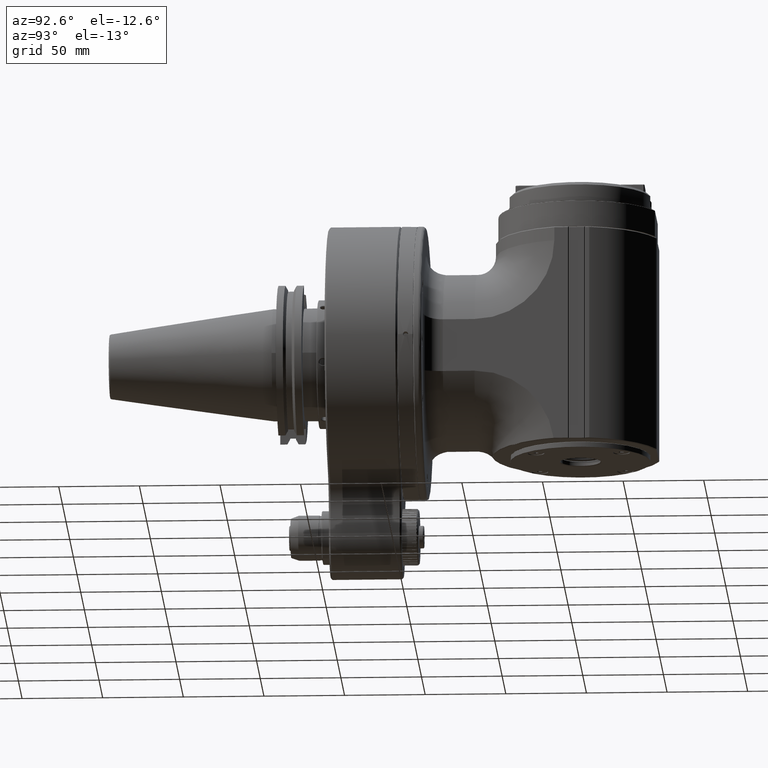
[diagram: clean part render]
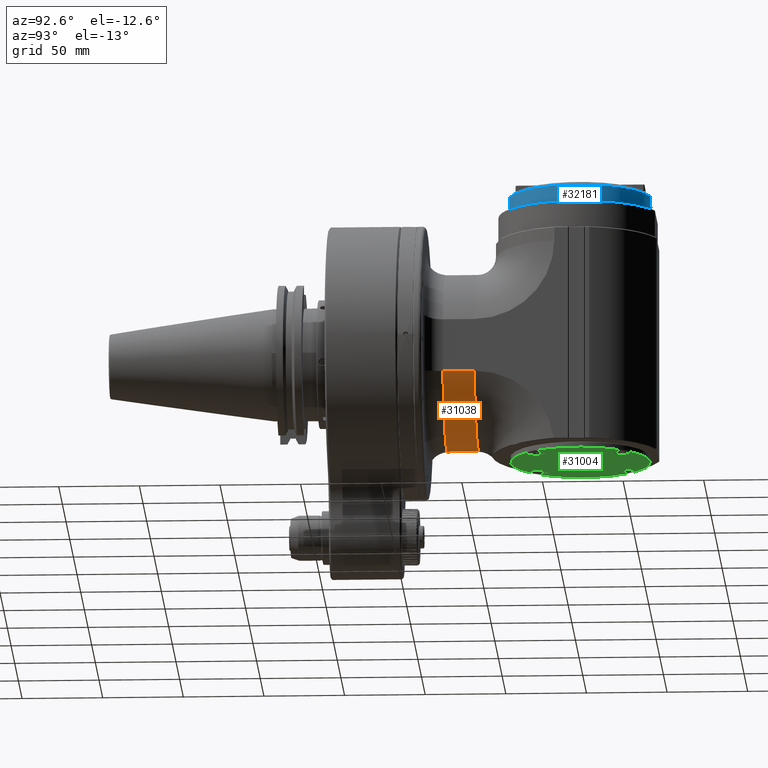
[diagram: same view with three faces highlighted in distinct colors, each labeled with its STEP entity id]
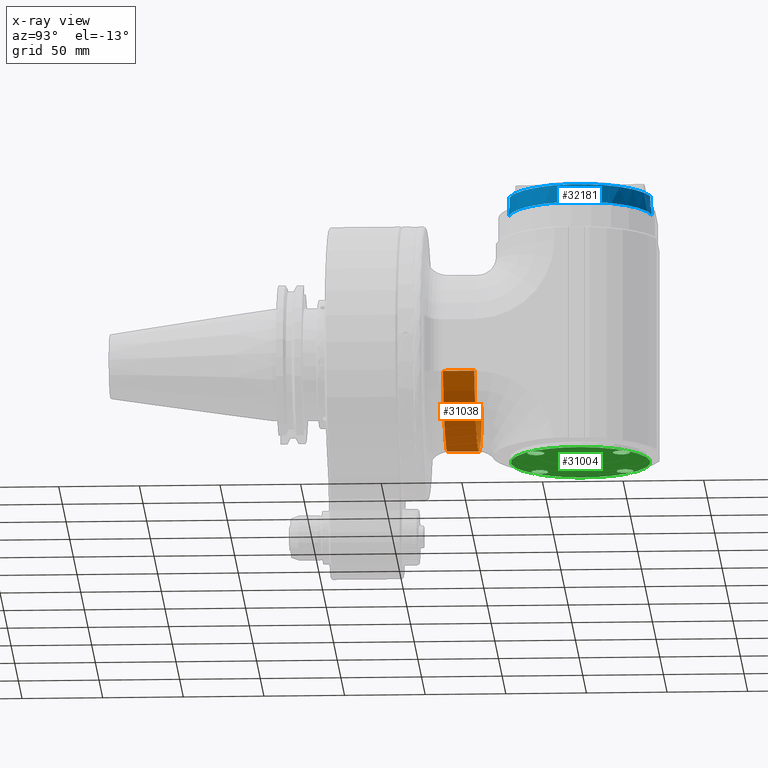
[diagram: x-ray of the same camera — body ghosted, the three highlighted faces saturated]
A machine part, auxiliary view with three faces highlighted in distinct colors.
The next image is the same camera in x-ray (body ghosted, the three faces saturated) — at least one of them is partly hidden behind the body in this view.
Their STEP definitions:

[orange] entity #31038 — the highlighted cylindrical surface (partial cylindrical patch) has radius 55 mm, axis along (0, 1, 0).
#1342=LINE('',#49433,#4148);
#1578=LINE('',#49927,#4384);
#4148=VECTOR('',#37153,19.5);
#4384=VECTOR('',#37433,19.5);
#6754=CYLINDRICAL_SURFACE('',#33212,55.);
#7626=FACE_OUTER_BOUND('',#9568,.T.);
#9568=EDGE_LOOP('',(#21930,#21931,#21932,#21933));
#11604=CIRCLE('',#33187,55.);
#11612=CIRCLE('',#33213,54.99999999997);
#13081=VERTEX_POINT('',#49425);
#13082=VERTEX_POINT('',#49427);
#13083=VERTEX_POINT('',#49432);
#13313=VERTEX_POINT('',#49925);
#16368=EDGE_CURVE('',#13082,#13081,#11604,.T.);
#16371=EDGE_CURVE('',#13083,#13082,#1342,.T.);
#16616=EDGE_CURVE('',#13313,#13081,#1578,.T.);
#16617=EDGE_CURVE('',#13313,#13083,#11612,.T.);
#21930=ORIENTED_EDGE('',*,*,#16368,.T.);
#21931=ORIENTED_EDGE('',*,*,#16616,.F.);
#21932=ORIENTED_EDGE('',*,*,#16617,.T.);
#21933=ORIENTED_EDGE('',*,*,#16371,.T.);
#31038=ADVANCED_FACE('',(#7626),#6754,.T.);
#33187=AXIS2_PLACEMENT_3D('',#49428,#37146,#37147);
#33212=AXIS2_PLACEMENT_3D('',#49928,#37434,#37435);
#33213=AXIS2_PLACEMENT_3D('',#49929,#37436,#37437);
#37146=DIRECTION('center_axis',(0.,-1.,0.));
#37147=DIRECTION('ref_axis',(-0.954545454545451,0.,-0.298065387468285));
#37153=DIRECTION('',(-2.663624306875E-13,1.,-5.021168666038E-13));
#37433=DIRECTION('',(2.470502435104E-13,1.,-6.270995119195E-13));
#37434=DIRECTION('center_axis',(0.,1.,0.));
#37435=DIRECTION('ref_axis',(1.,0.,0.));
#37436=DIRECTION('center_axis',(0.,1.,0.));
#37437=DIRECTION('ref_axis',(0.954545454545573,0.,-0.298065387467892));
#49425=CARTESIAN_POINT('',(52.5,46.5,-16.39359631076));
#49427=CARTESIAN_POINT('',(-52.5,46.5,-16.39359631076));
#49428=CARTESIAN_POINT('Origin',(0.,46.5,0.));
#49432=CARTESIAN_POINT('',(-52.49999999999,27.,-16.39359631075));
#49433=CARTESIAN_POINT('',(-52.49999999999,27.,-16.39359631075));
#49925=CARTESIAN_POINT('',(52.5,27.,-16.39359631074));
#49927=CARTESIAN_POINT('',(52.5,27.,-16.39359631074));
#49928=CARTESIAN_POINT('Origin',(0.,-40.15,0.));
#49929=CARTESIAN_POINT('Origin',(0.,27.,0.));

[blue] entity #32181 — the highlighted cylindrical surface (partial cylindrical patch) has radius 44.5 mm, axis along (0, 0, -1).
#3364=LINE('',#59233,#6170);
#3366=LINE('',#59249,#6172);
#3367=LINE('',#59254,#6173);
#3368=LINE('',#59258,#6174);
#6170=VECTOR('',#42813,4.5);
#6172=VECTOR('',#42819,4.5);
#6173=VECTOR('',#42824,6.5);
#6174=VECTOR('',#42827,6.5);
#6938=CYLINDRICAL_SURFACE('',#35010,44.5);
#8769=FACE_OUTER_BOUND('',#10832,.T.);
#10832=EDGE_LOOP('',(#27586,#27587,#27588,#27589,#27590,#27591,#27592,#27593));
#12272=CIRCLE('',#35011,44.5);
#12273=CIRCLE('',#35012,44.5);
#12274=CIRCLE('',#35013,44.5);
#12275=CIRCLE('',#35014,44.5);
#14987=VERTEX_POINT('',#59231);
#14988=VERTEX_POINT('',#59232);
#14991=VERTEX_POINT('',#59247);
#14992=VERTEX_POINT('',#59248);
#14993=VERTEX_POINT('',#59251);
#14994=VERTEX_POINT('',#59253);
#14995=VERTEX_POINT('',#59255);
#14996=VERTEX_POINT('',#59257);
#19291=EDGE_CURVE('',#14987,#14988,#3364,.T.);
#19296=EDGE_CURVE('',#14991,#14992,#3366,.T.);
#19297=EDGE_CURVE('',#14988,#14992,#12272,.T.);
#19298=EDGE_CURVE('',#14987,#14993,#12273,.T.);
#19299=EDGE_CURVE('',#14994,#14993,#3367,.T.);
#19300=EDGE_CURVE('',#14994,#14995,#12274,.T.);
#19301=EDGE_CURVE('',#14995,#14996,#3368,.T.);
#19302=EDGE_CURVE('',#14996,#14991,#12275,.T.);
#27586=ORIENTED_EDGE('',*,*,#19296,.T.);
#27587=ORIENTED_EDGE('',*,*,#19297,.F.);
#27588=ORIENTED_EDGE('',*,*,#19291,.F.);
#27589=ORIENTED_EDGE('',*,*,#19298,.T.);
#27590=ORIENTED_EDGE('',*,*,#19299,.F.);
#27591=ORIENTED_EDGE('',*,*,#19300,.T.);
#27592=ORIENTED_EDGE('',*,*,#19301,.T.);
#27593=ORIENTED_EDGE('',*,*,#19302,.T.);
#32181=ADVANCED_FACE('',(#8769),#6938,.T.);
#35010=AXIS2_PLACEMENT_3D('',#59246,#42817,#42818);
#35011=AXIS2_PLACEMENT_3D('',#59250,#42820,#42821);
#35012=AXIS2_PLACEMENT_3D('',#59252,#42822,#42823);
#35013=AXIS2_PLACEMENT_3D('',#59256,#42825,#42826);
#35014=AXIS2_PLACEMENT_3D('',#59259,#42828,#42829);
#42813=DIRECTION('',(0.,0.,-1.));
#42817=DIRECTION('center_axis',(0.,0.,-1.));
#42818=DIRECTION('ref_axis',(0.,-1.,0.));
#42819=DIRECTION('',(0.,0.,-1.));
#42820=DIRECTION('center_axis',(0.,0.,-1.));
#42821=DIRECTION('ref_axis',(0.0973896769489501,0.995246326707001,0.));
#42822=DIRECTION('center_axis',(0.,0.,-1.));
#42823=DIRECTION('ref_axis',(0.0973896769489501,0.995246326707001,0.));
#42824=DIRECTION('',(0.,0.,-1.));
#42825=DIRECTION('center_axis',(0.,0.,-1.));
#42826=DIRECTION('ref_axis',(0.201784940526397,0.979429853423285,0.));
#42827=DIRECTION('',(0.,0.,-1.));
#42828=DIRECTION('center_axis',(0.,0.,-1.));
#42829=DIRECTION('ref_axis',(0.201784940526397,-0.979429853423285,0.));
#59231=CARTESIAN_POINT('',(4.333840624228,154.2884615385,96.5));
#59232=CARTESIAN_POINT('',(4.333840624228,154.2884615385,92.));
#59233=CARTESIAN_POINT('',(4.333840624228,154.2884615385,96.5));
#59246=CARTESIAN_POINT('Origin',(0.,110.,113.225));
#59247=CARTESIAN_POINT('',(4.333840624228,65.71153846154,96.5));
#59248=CARTESIAN_POINT('',(4.333840624228,65.71153846154,92.));
#59249=CARTESIAN_POINT('',(4.333840624228,65.71153846154,96.5));
#59250=CARTESIAN_POINT('Origin',(0.,110.,92.));
#59251=CARTESIAN_POINT('',(8.979429853423,153.5846284773,96.5));
#59252=CARTESIAN_POINT('Origin',(0.,110.,96.5));
#59253=CARTESIAN_POINT('',(8.979429853423,153.5846284773,103.));
#59254=CARTESIAN_POINT('',(8.979429853423,153.5846284773,103.));
#59255=CARTESIAN_POINT('',(8.979429853423,66.41537152266,103.));
#59256=CARTESIAN_POINT('Origin',(0.,110.,103.));
#59257=CARTESIAN_POINT('',(8.979429853423,66.41537152266,96.5));
#59258=CARTESIAN_POINT('',(8.979429853423,66.41537152266,103.));
#59259=CARTESIAN_POINT('Origin',(0.,110.,96.5));

[green] entity #31004 — the highlighted planar face has unit normal (0, 0, -1).
#7139=FACE_BOUND('',#9512,.T.);
#7140=FACE_BOUND('',#9513,.T.);
#7141=FACE_BOUND('',#9514,.T.);
#7142=FACE_BOUND('',#9515,.T.);
#7143=FACE_BOUND('',#9516,.T.);
#7592=FACE_OUTER_BOUND('',#9511,.T.);
#9511=EDGE_LOOP('',(#21526));
#9512=EDGE_LOOP('',(#21527));
#9513=EDGE_LOOP('',(#21528));
#9514=EDGE_LOOP('',(#21529));
#9515=EDGE_LOOP('',(#21530));
#9516=EDGE_LOOP('',(#21531));
#11579=CIRCLE('',#33141,13.);
#11580=CIRCLE('',#33143,43.3);
#11581=CIRCLE('',#33144,5.25);
#11582=CIRCLE('',#33145,5.25);
#11583=CIRCLE('',#33146,5.25);
#11584=CIRCLE('',#33147,5.25);
#13022=VERTEX_POINT('',#48772);
#13023=VERTEX_POINT('',#48776);
#13024=VERTEX_POINT('',#48778);
#13025=VERTEX_POINT('',#48780);
#13026=VERTEX_POINT('',#48782);
#13027=VERTEX_POINT('',#48784);
#16292=EDGE_CURVE('',#13022,#13022,#11579,.T.);
#16293=EDGE_CURVE('',#13023,#13023,#11580,.T.);
#16294=EDGE_CURVE('',#13024,#13024,#11581,.T.);
#16295=EDGE_CURVE('',#13025,#13025,#11582,.T.);
#16296=EDGE_CURVE('',#13026,#13026,#11583,.T.);
#16297=EDGE_CURVE('',#13027,#13027,#11584,.T.);
#21526=ORIENTED_EDGE('',*,*,#16293,.F.);
#21527=ORIENTED_EDGE('',*,*,#16294,.F.);
#21528=ORIENTED_EDGE('',*,*,#16295,.F.);
#21529=ORIENTED_EDGE('',*,*,#16296,.F.);
#21530=ORIENTED_EDGE('',*,*,#16297,.F.);
#21531=ORIENTED_EDGE('',*,*,#16292,.T.);
#29845=PLANE('',#33142);
#31004=ADVANCED_FACE('',(#7592,#7139,#7140,#7141,#7142,#7143),#29845,.T.);
#33141=AXIS2_PLACEMENT_3D('',#48774,#37018,#37019);
#33142=AXIS2_PLACEMENT_3D('',#48775,#37020,#37021);
#33143=AXIS2_PLACEMENT_3D('',#48777,#37022,#37023);
#33144=AXIS2_PLACEMENT_3D('',#48779,#37024,#37025);
#33145=AXIS2_PLACEMENT_3D('',#48781,#37026,#37027);
#33146=AXIS2_PLACEMENT_3D('',#48783,#37028,#37029);
#33147=AXIS2_PLACEMENT_3D('',#48785,#37030,#37031);
#37018=DIRECTION('center_axis',(0.,0.,1.));
#37019=DIRECTION('ref_axis',(-0.707106781186548,-0.707106781186548,0.));
#37020=DIRECTION('center_axis',(0.,0.,-1.));
#37021=DIRECTION('ref_axis',(-0.707106781186548,-0.707106781186548,0.));
#37022=DIRECTION('center_axis',(0.,0.,1.));
#37023=DIRECTION('ref_axis',(-0.707106781186547,-0.707106781186547,0.));
#37024=DIRECTION('center_axis',(0.,0.,-1.));
#37025=DIRECTION('ref_axis',(0.707106781186548,-0.707106781186548,0.));
#37026=DIRECTION('center_axis',(0.,0.,-1.));
#37027=DIRECTION('ref_axis',(-0.707106781186548,-0.707106781186548,0.));
#37028=DIRECTION('center_axis',(0.,0.,-1.));
#37029=DIRECTION('ref_axis',(-0.707106781186548,0.707106781186548,0.));
#37030=DIRECTION('center_axis',(0.,0.,-1.));
#37031=DIRECTION('ref_axis',(0.707106781186548,0.707106781186548,0.));
#48772=CARTESIAN_POINT('',(9.192388155425,119.1923881554,-63.5));
#48774=CARTESIAN_POINT('Origin',(0.,110.,-63.5));
#48775=CARTESIAN_POINT('Origin',(0.,110.,-63.5));
#48776=CARTESIAN_POINT('',(30.61772362538,140.6177236254,-63.5));
#48777=CARTESIAN_POINT('Origin',(0.,110.,-63.5));
#48778=CARTESIAN_POINT('',(-30.2288148957294,87.1958063067294,-63.5));
#48779=CARTESIAN_POINT('Origin',(-26.5165042945,83.4834957055,-63.5));
#48780=CARTESIAN_POINT('',(-22.8041936932706,140.228814895729,-63.5));
#48781=CARTESIAN_POINT('Origin',(-26.5165042945,136.5165042945,-63.5));
#48782=CARTESIAN_POINT('',(30.2288148957294,132.804193693271,-63.5));
#48783=CARTESIAN_POINT('Origin',(26.5165042945,136.5165042945,-63.5));
#48784=CARTESIAN_POINT('',(22.8041936932706,79.7711851042706,-63.5));
#48785=CARTESIAN_POINT('Origin',(26.5165042945,83.4834957055,-63.5));